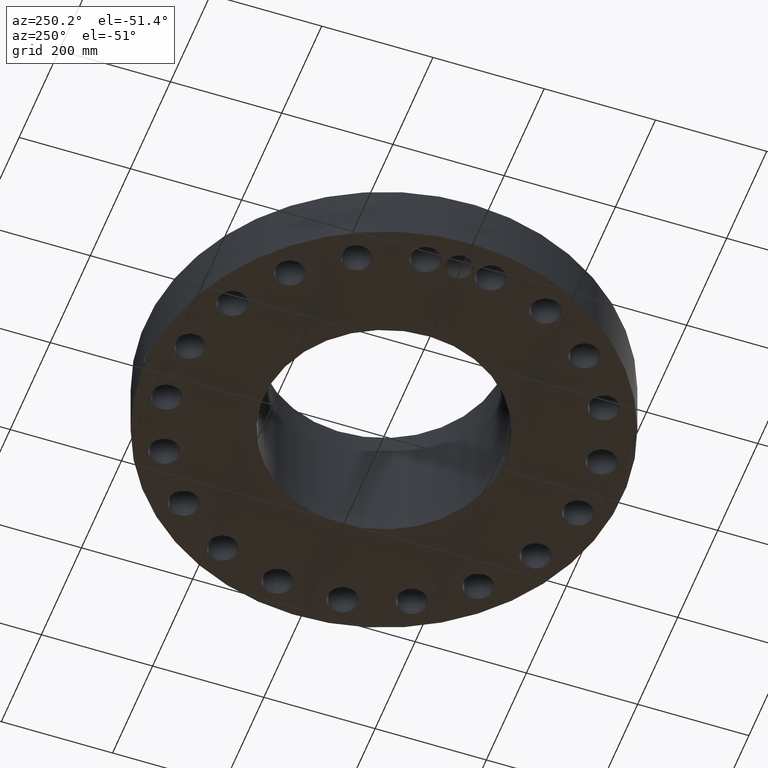
[diagram: clean part render]
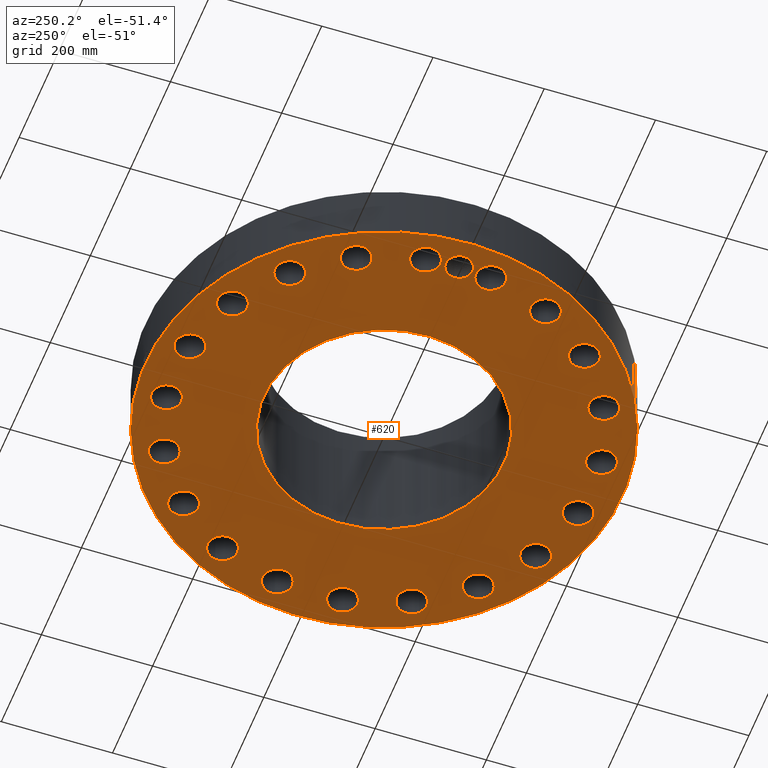
[diagram: same view with one face highlighted and labeled with its STEP entity id]
A machine part, auxiliary view. The second image highlights one B-rep face of the part: STEP entity #620.
In plain terms, the highlighted planar face has unit normal (0, 0, -1).
Its self-contained STEP definition (entity closure, byte-faithful):
#42=AXIS2_PLACEMENT_3D('Circle Axis2P3D',#40,#41,$) ;
#165=AXIS2_PLACEMENT_3D('Plane Axis2P3D',#162,#163,#164) ;
#169=AXIS2_PLACEMENT_3D('Circle Axis2P3D',#167,#168,$) ;
#178=AXIS2_PLACEMENT_3D('Circle Axis2P3D',#176,#177,$) ;
#187=AXIS2_PLACEMENT_3D('Circle Axis2P3D',#185,#186,$) ;
#244=AXIS2_PLACEMENT_3D('Circle Axis2P3D',#242,#243,$) ;
#253=AXIS2_PLACEMENT_3D('Circle Axis2P3D',#251,#252,$) ;
#262=AXIS2_PLACEMENT_3D('Circle Axis2P3D',#260,#261,$) ;
#271=AXIS2_PLACEMENT_3D('Circle Axis2P3D',#269,#270,$) ;
#280=AXIS2_PLACEMENT_3D('Circle Axis2P3D',#278,#279,$) ;
#289=AXIS2_PLACEMENT_3D('Circle Axis2P3D',#287,#288,$) ;
#298=AXIS2_PLACEMENT_3D('Circle Axis2P3D',#296,#297,$) ;
#307=AXIS2_PLACEMENT_3D('Circle Axis2P3D',#305,#306,$) ;
#316=AXIS2_PLACEMENT_3D('Circle Axis2P3D',#314,#315,$) ;
#325=AXIS2_PLACEMENT_3D('Circle Axis2P3D',#323,#324,$) ;
#334=AXIS2_PLACEMENT_3D('Circle Axis2P3D',#332,#333,$) ;
#343=AXIS2_PLACEMENT_3D('Circle Axis2P3D',#341,#342,$) ;
#352=AXIS2_PLACEMENT_3D('Circle Axis2P3D',#350,#351,$) ;
#361=AXIS2_PLACEMENT_3D('Circle Axis2P3D',#359,#360,$) ;
#370=AXIS2_PLACEMENT_3D('Circle Axis2P3D',#368,#369,$) ;
#379=AXIS2_PLACEMENT_3D('Circle Axis2P3D',#377,#378,$) ;
#388=AXIS2_PLACEMENT_3D('Circle Axis2P3D',#386,#387,$) ;
#397=AXIS2_PLACEMENT_3D('Circle Axis2P3D',#395,#396,$) ;
#406=AXIS2_PLACEMENT_3D('Circle Axis2P3D',#404,#405,$) ;
#415=AXIS2_PLACEMENT_3D('Circle Axis2P3D',#413,#414,$) ;
#424=AXIS2_PLACEMENT_3D('Circle Axis2P3D',#422,#423,$) ;
#433=AXIS2_PLACEMENT_3D('Circle Axis2P3D',#431,#432,$) ;
#442=AXIS2_PLACEMENT_3D('Circle Axis2P3D',#440,#441,$) ;
#451=AXIS2_PLACEMENT_3D('Circle Axis2P3D',#449,#450,$) ;
#460=AXIS2_PLACEMENT_3D('Circle Axis2P3D',#458,#459,$) ;
#469=AXIS2_PLACEMENT_3D('Circle Axis2P3D',#467,#468,$) ;
#478=AXIS2_PLACEMENT_3D('Circle Axis2P3D',#476,#477,$) ;
#487=AXIS2_PLACEMENT_3D('Circle Axis2P3D',#485,#486,$) ;
#496=AXIS2_PLACEMENT_3D('Circle Axis2P3D',#494,#495,$) ;
#505=AXIS2_PLACEMENT_3D('Circle Axis2P3D',#503,#504,$) ;
#514=AXIS2_PLACEMENT_3D('Circle Axis2P3D',#512,#513,$) ;
#523=AXIS2_PLACEMENT_3D('Circle Axis2P3D',#521,#522,$) ;
#532=AXIS2_PLACEMENT_3D('Circle Axis2P3D',#530,#531,$) ;
#541=AXIS2_PLACEMENT_3D('Circle Axis2P3D',#539,#540,$) ;
#550=AXIS2_PLACEMENT_3D('Circle Axis2P3D',#548,#549,$) ;
#559=AXIS2_PLACEMENT_3D('Circle Axis2P3D',#557,#558,$) ;
#568=AXIS2_PLACEMENT_3D('Circle Axis2P3D',#566,#567,$) ;
#577=AXIS2_PLACEMENT_3D('Circle Axis2P3D',#575,#576,$) ;
#586=AXIS2_PLACEMENT_3D('Circle Axis2P3D',#584,#585,$) ;
#595=AXIS2_PLACEMENT_3D('Circle Axis2P3D',#593,#594,$) ;
#604=AXIS2_PLACEMENT_3D('Circle Axis2P3D',#602,#603,$) ;
#613=AXIS2_PLACEMENT_3D('Circle Axis2P3D',#611,#612,$) ;
#40=CARTESIAN_POINT('Axis2P3D Location',(0.,0.,0.250000000001)) ;
#44=CARTESIAN_POINT('Vertex',(-8.09030596398,-14.809205732,0.250000000001)) ;
#46=CARTESIAN_POINT('Vertex',(8.09030596398,14.809205732,0.250000000001)) ;
#162=CARTESIAN_POINT('Axis2P3D Location',(0.,8.50000000003,0.250000000001)) ;
#167=CARTESIAN_POINT('Axis2P3D Location',(0.,0.,0.250000000001)) ;
#176=CARTESIAN_POINT('Axis2P3D Location',(-14.7500000001,-1.1189649382E-015,0.250000000001)) ;
#180=CARTESIAN_POINT('Vertex',(-15.5842738625,0.455765888276,0.250000000001)) ;
#182=CARTESIAN_POINT('Vertex',(-13.9693356339,0.542492921604,0.250000000001)) ;
#185=CARTESIAN_POINT('Axis2P3D Location',(-14.7500000001,-1.1189649382E-015,0.250000000001)) ;
#189=CARTESIAN_POINT('Vertex',(-15.3111127477,-0.767390322455,0.250000000001)) ;
#193=CARTESIAN_POINT('Control Point',(-14.0514188244,-0.715533879302,0.250000000001)) ;
#194=CARTESIAN_POINT('Control Point',(-14.118556164,-0.776622849857,0.250000000001)) ;
#195=CARTESIAN_POINT('Control Point',(-14.1924941387,-0.829970288566,0.250000000001)) ;
#196=CARTESIAN_POINT('Control Point',(-14.2720742187,-0.874557995032,0.250000000001)) ;
#197=CARTESIAN_POINT('Control Point',(-14.4276412036,-0.939620832783,0.250000000001)) ;
#198=CARTESIAN_POINT('Control Point',(-14.5926131451,-0.970379445515,0.250000000001)) ;
#199=CARTESIAN_POINT('Control Point',(-14.6697604831,-0.977000222488,0.250000000001)) ;
#200=CARTESIAN_POINT('Control Point',(-14.7983636801,-0.975285684745,0.250000000001)) ;
#201=CARTESIAN_POINT('Control Point',(-14.924315882,-0.952680483184,0.250000000001)) ;
#202=CARTESIAN_POINT('Control Point',(-14.9739500716,-0.940340956321,0.250000000001)) ;
#203=CARTESIAN_POINT('Control Point',(-15.0760871386,-0.907637720672,0.250000000001)) ;
#204=CARTESIAN_POINT('Control Point',(-15.1725070161,-0.861205760852,0.250000000001)) ;
#205=CARTESIAN_POINT('Control Point',(-15.2210955779,-0.833256870486,0.250000000001)) ;
#206=CARTESIAN_POINT('Control Point',(-15.2674000313,-0.801900452476,0.250000000001)) ;
#207=CARTESIAN_POINT('Control Point',(-15.3111127477,-0.767390322455,0.250000000001)) ;
#208=CARTESIAN_POINT('Vertex',(-14.0514188244,-0.715533879289,0.250000000001)) ;
#212=CARTESIAN_POINT('Control Point',(-14.0514188244,-0.715533879289,0.250000000001)) ;
#213=CARTESIAN_POINT('Control Point',(-13.988759441,-0.649911806447,0.250000000001)) ;
#214=CARTESIAN_POINT('Control Point',(-13.9336573939,-0.577297224844,0.250000000001)) ;
#215=CARTESIAN_POINT('Control Point',(-13.887167689,-0.498814867849,0.250000000001)) ;
#216=CARTESIAN_POINT('Control Point',(-13.8224416696,-0.353907081952,0.250000000001)) ;
#217=CARTESIAN_POINT('Control Point',(-13.7878918017,-0.199909548707,0.250000000001)) ;
#218=CARTESIAN_POINT('Control Point',(-13.7788308177,-0.133049610127,0.250000000001)) ;
#219=CARTESIAN_POINT('Control Point',(-13.7755624558,-0.0658253530476,0.250000000001)) ;
#220=CARTESIAN_POINT('Control Point',(-13.77805554,0.00108322515571,0.250000000001)) ;
#221=CARTESIAN_POINT('Vertex',(-13.77805554,0.00108322515571,0.250000000001)) ;
#225=CARTESIAN_POINT('Control Point',(-13.77805554,0.00108322515571,0.250000000001)) ;
#226=CARTESIAN_POINT('Control Point',(-13.780911831,0.0777394265752,0.250000000001)) ;
#227=CARTESIAN_POINT('Control Point',(-13.7913305514,0.153981240969,0.250000000001)) ;
#228=CARTESIAN_POINT('Control Point',(-13.8092574384,0.228801200281,0.250000000001)) ;
#229=CARTESIAN_POINT('Control Point',(-13.8477488535,0.339508725271,0.250000000001)) ;
#230=CARTESIAN_POINT('Control Point',(-13.9021555322,0.442476144287,0.250000000001)) ;
#231=CARTESIAN_POINT('Control Point',(-13.9228184454,0.477039834807,0.250000000001)) ;
#232=CARTESIAN_POINT('Control Point',(-13.9452423512,0.510417855202,0.250000000001)) ;
#233=CARTESIAN_POINT('Control Point',(-13.9693356339,0.542492921604,0.250000000001)) ;
#242=CARTESIAN_POINT('Axis2P3D Location',(14.5684030238,-2.30740835935,0.250000000001)) ;
#246=CARTESIAN_POINT('Vertex',(15.4986405394,-2.81559943028,0.250000000001)) ;
#248=CARTESIAN_POINT('Vertex',(13.6381655082,-1.79921728843,0.250000000001)) ;
#251=CARTESIAN_POINT('Axis2P3D Location',(14.5684030238,-2.30740835935,0.250000000001)) ;
#260=CARTESIAN_POINT('Axis2P3D Location',(0.,0.,0.250000000001)) ;
#264=CARTESIAN_POINT('Vertex',(4.07511707815,7.4594517761,0.250000000001)) ;
#266=CARTESIAN_POINT('Vertex',(-4.07511707815,-7.4594517761,0.250000000001)) ;
#269=CARTESIAN_POINT('Axis2P3D Location',(0.,0.,0.250000000001)) ;
#278=CARTESIAN_POINT('Axis2P3D Location',(13.1423462318,-6.69635987119,0.250000000001)) ;
#282=CARTESIAN_POINT('Vertex',(12.4146774582,-5.92558224053,0.250000000001)) ;
#284=CARTESIAN_POINT('Vertex',(13.8700150054,-7.46713750184,0.250000000001)) ;
#287=CARTESIAN_POINT('Axis2P3D Location',(13.1423462318,-6.69635987119,0.250000000001)) ;
#296=CARTESIAN_POINT('Axis2P3D Location',(10.4298250225,-10.4298250225,0.250000000001)) ;
#300=CARTESIAN_POINT('Vertex',(9.97595428045,-9.47190991697,0.250000000001)) ;
#302=CARTESIAN_POINT('Vertex',(10.8836957646,-11.3877401281,0.250000000001)) ;
#305=CARTESIAN_POINT('Axis2P3D Location',(10.4298250225,-10.4298250225,0.250000000001)) ;
#314=CARTESIAN_POINT('Axis2P3D Location',(6.69635987119,-13.1423462318,0.250000000001)) ;
#318=CARTESIAN_POINT('Vertex',(6.56071519115,-12.0910610561,0.250000000001)) ;
#320=CARTESIAN_POINT('Vertex',(6.83200455122,-14.1936314076,0.250000000001)) ;
#323=CARTESIAN_POINT('Axis2P3D Location',(6.69635987119,-13.1423462318,0.250000000001)) ;
#332=CARTESIAN_POINT('Axis2P3D Location',(2.30740835935,-14.5684030238,0.250000000001)) ;
#336=CARTESIAN_POINT('Vertex',(2.50326758775,-13.5266548956,0.250000000001)) ;
#338=CARTESIAN_POINT('Vertex',(2.11154913096,-15.6101511521,0.250000000001)) ;
#341=CARTESIAN_POINT('Axis2P3D Location',(2.30740835935,-14.5684030238,0.250000000001)) ;
#350=CARTESIAN_POINT('Axis2P3D Location',(-2.30740835935,-14.5684030238,0.250000000001)) ;
#354=CARTESIAN_POINT('Vertex',(-1.79921728843,-13.6381655082,0.250000000001)) ;
#356=CARTESIAN_POINT('Vertex',(-2.81559943028,-15.4986405394,0.250000000001)) ;
#359=CARTESIAN_POINT('Axis2P3D Location',(-2.30740835935,-14.5684030238,0.250000000001)) ;
#368=CARTESIAN_POINT('Axis2P3D Location',(-6.69635987119,-13.1423462318,0.250000000001)) ;
#372=CARTESIAN_POINT('Vertex',(-5.92558224053,-12.4146774582,0.250000000001)) ;
#374=CARTESIAN_POINT('Vertex',(-7.46713750184,-13.8700150054,0.250000000001)) ;
#377=CARTESIAN_POINT('Axis2P3D Location',(-6.69635987119,-13.1423462318,0.250000000001)) ;
#386=CARTESIAN_POINT('Axis2P3D Location',(-10.4298250225,-10.4298250225,0.250000000001)) ;
#390=CARTESIAN_POINT('Vertex',(-9.47190991697,-9.97595428045,0.250000000001)) ;
#392=CARTESIAN_POINT('Vertex',(-11.3877401281,-10.8836957646,0.250000000001)) ;
#395=CARTESIAN_POINT('Axis2P3D Location',(-10.4298250225,-10.4298250225,0.250000000001)) ;
#404=CARTESIAN_POINT('Axis2P3D Location',(-13.1423462318,-6.69635987119,0.250000000001)) ;
#408=CARTESIAN_POINT('Vertex',(-12.0910610561,-6.56071519115,0.250000000001)) ;
#410=CARTESIAN_POINT('Vertex',(-14.1936314076,-6.83200455122,0.250000000001)) ;
#413=CARTESIAN_POINT('Axis2P3D Location',(-13.1423462318,-6.69635987119,0.250000000001)) ;
#422=CARTESIAN_POINT('Axis2P3D Location',(-14.5684030238,-2.30740835935,0.250000000001)) ;
#426=CARTESIAN_POINT('Vertex',(-13.5266548956,-2.50326758775,0.250000000001)) ;
#428=CARTESIAN_POINT('Vertex',(-15.6101511521,-2.11154913096,0.250000000001)) ;
#431=CARTESIAN_POINT('Axis2P3D Location',(-14.5684030238,-2.30740835935,0.250000000001)) ;
#440=CARTESIAN_POINT('Axis2P3D Location',(-14.5684030238,2.30740835935,0.250000000001)) ;
#444=CARTESIAN_POINT('Vertex',(-13.6381655082,1.79921728843,0.250000000001)) ;
#446=CARTESIAN_POINT('Vertex',(-15.4986405394,2.81559943028,0.250000000001)) ;
#449=CARTESIAN_POINT('Axis2P3D Location',(-14.5684030238,2.30740835935,0.250000000001)) ;
#458=CARTESIAN_POINT('Axis2P3D Location',(-13.1423462318,6.69635987119,0.250000000001)) ;
#462=CARTESIAN_POINT('Vertex',(-12.4146774582,5.92558224053,0.250000000001)) ;
#464=CARTESIAN_POINT('Vertex',(-13.8700150054,7.46713750184,0.250000000001)) ;
#467=CARTESIAN_POINT('Axis2P3D Location',(-13.1423462318,6.69635987119,0.250000000001)) ;
#476=CARTESIAN_POINT('Axis2P3D Location',(-10.4298250225,10.4298250225,0.250000000001)) ;
#480=CARTESIAN_POINT('Vertex',(-9.97595428045,9.47190991697,0.250000000001)) ;
#482=CARTESIAN_POINT('Vertex',(-10.8836957646,11.3877401281,0.250000000001)) ;
#485=CARTESIAN_POINT('Axis2P3D Location',(-10.4298250225,10.4298250225,0.250000000001)) ;
#494=CARTESIAN_POINT('Axis2P3D Location',(-6.69635987119,13.1423462318,0.250000000001)) ;
#498=CARTESIAN_POINT('Vertex',(-6.56071519115,12.0910610561,0.250000000001)) ;
#500=CARTESIAN_POINT('Vertex',(-6.83200455122,14.1936314076,0.250000000001)) ;
#503=CARTESIAN_POINT('Axis2P3D Location',(-6.69635987119,13.1423462318,0.250000000001)) ;
#512=CARTESIAN_POINT('Axis2P3D Location',(-2.30740835935,14.5684030238,0.250000000001)) ;
#516=CARTESIAN_POINT('Vertex',(-2.50326758775,13.5266548956,0.250000000001)) ;
#518=CARTESIAN_POINT('Vertex',(-2.11154913096,15.6101511521,0.250000000001)) ;
#521=CARTESIAN_POINT('Axis2P3D Location',(-2.30740835935,14.5684030238,0.250000000001)) ;
#530=CARTESIAN_POINT('Axis2P3D Location',(2.30740835935,14.5684030238,0.250000000001)) ;
#534=CARTESIAN_POINT('Vertex',(1.79921728843,13.6381655082,0.250000000001)) ;
#536=CARTESIAN_POINT('Vertex',(2.81559943028,15.4986405394,0.250000000001)) ;
#539=CARTESIAN_POINT('Axis2P3D Location',(2.30740835935,14.5684030238,0.250000000001)) ;
#548=CARTESIAN_POINT('Axis2P3D Location',(6.69635987119,13.1423462318,0.250000000001)) ;
#552=CARTESIAN_POINT('Vertex',(5.92558224053,12.4146774582,0.250000000001)) ;
#554=CARTESIAN_POINT('Vertex',(7.46713750184,13.8700150054,0.250000000001)) ;
#557=CARTESIAN_POINT('Axis2P3D Location',(6.69635987119,13.1423462318,0.250000000001)) ;
#566=CARTESIAN_POINT('Axis2P3D Location',(10.4298250225,10.4298250225,0.250000000001)) ;
#570=CARTESIAN_POINT('Vertex',(9.47190991697,9.97595428045,0.250000000001)) ;
#572=CARTESIAN_POINT('Vertex',(11.3877401281,10.8836957646,0.250000000001)) ;
#575=CARTESIAN_POINT('Axis2P3D Location',(10.4298250225,10.4298250225,0.250000000001)) ;
#584=CARTESIAN_POINT('Axis2P3D Location',(13.1423462318,6.69635987119,0.250000000001)) ;
#588=CARTESIAN_POINT('Vertex',(12.0910610561,6.56071519115,0.250000000001)) ;
#590=CARTESIAN_POINT('Vertex',(14.1936314076,6.83200455122,0.250000000001)) ;
#593=CARTESIAN_POINT('Axis2P3D Location',(13.1423462318,6.69635987119,0.250000000001)) ;
#602=CARTESIAN_POINT('Axis2P3D Location',(14.5684030238,2.30740835935,0.250000000001)) ;
#606=CARTESIAN_POINT('Vertex',(13.5266548956,2.50326758775,0.250000000001)) ;
#608=CARTESIAN_POINT('Vertex',(15.6101511521,2.11154913096,0.250000000001)) ;
#611=CARTESIAN_POINT('Axis2P3D Location',(14.5684030238,2.30740835935,0.250000000001)) ;
#41=DIRECTION('Axis2P3D Direction',(0.,0.,-0.0393700787402)) ;
#163=DIRECTION('Axis2P3D Direction',(0.,0.,-0.0393700787402)) ;
#164=DIRECTION('Axis2P3D XDirection',(0.0393700787402,0.,0.)) ;
#168=DIRECTION('Axis2P3D Direction',(0.,0.,-0.0393700787402)) ;
#177=DIRECTION('Axis2P3D Direction',(0.,0.,-0.0393700787402)) ;
#186=DIRECTION('Axis2P3D Direction',(0.,0.,-0.0393700787402)) ;
#243=DIRECTION('Axis2P3D Direction',(0.,0.,-0.0393700787402)) ;
#252=DIRECTION('Axis2P3D Direction',(0.,0.,-0.0393700787402)) ;
#261=DIRECTION('Axis2P3D Direction',(0.,0.,-0.0393700787402)) ;
#270=DIRECTION('Axis2P3D Direction',(0.,0.,-0.0393700787402)) ;
#279=DIRECTION('Axis2P3D Direction',(0.,0.,-0.0393700787402)) ;
#288=DIRECTION('Axis2P3D Direction',(0.,0.,-0.0393700787402)) ;
#297=DIRECTION('Axis2P3D Direction',(0.,0.,-0.0393700787402)) ;
#306=DIRECTION('Axis2P3D Direction',(0.,0.,-0.0393700787402)) ;
#315=DIRECTION('Axis2P3D Direction',(0.,0.,-0.0393700787402)) ;
#324=DIRECTION('Axis2P3D Direction',(0.,0.,-0.0393700787402)) ;
#333=DIRECTION('Axis2P3D Direction',(0.,0.,-0.0393700787402)) ;
#342=DIRECTION('Axis2P3D Direction',(0.,0.,-0.0393700787402)) ;
#351=DIRECTION('Axis2P3D Direction',(0.,0.,-0.0393700787402)) ;
#360=DIRECTION('Axis2P3D Direction',(0.,0.,-0.0393700787402)) ;
#369=DIRECTION('Axis2P3D Direction',(0.,0.,-0.0393700787402)) ;
#378=DIRECTION('Axis2P3D Direction',(0.,0.,-0.0393700787402)) ;
#387=DIRECTION('Axis2P3D Direction',(0.,0.,-0.0393700787402)) ;
#396=DIRECTION('Axis2P3D Direction',(0.,0.,-0.0393700787402)) ;
#405=DIRECTION('Axis2P3D Direction',(0.,0.,-0.0393700787402)) ;
#414=DIRECTION('Axis2P3D Direction',(0.,0.,-0.0393700787402)) ;
#423=DIRECTION('Axis2P3D Direction',(0.,0.,-0.0393700787402)) ;
#432=DIRECTION('Axis2P3D Direction',(0.,0.,-0.0393700787402)) ;
#441=DIRECTION('Axis2P3D Direction',(0.,0.,-0.0393700787402)) ;
#450=DIRECTION('Axis2P3D Direction',(0.,0.,-0.0393700787402)) ;
#459=DIRECTION('Axis2P3D Direction',(0.,0.,-0.0393700787402)) ;
#468=DIRECTION('Axis2P3D Direction',(0.,0.,-0.0393700787402)) ;
#477=DIRECTION('Axis2P3D Direction',(0.,0.,-0.0393700787402)) ;
#486=DIRECTION('Axis2P3D Direction',(0.,0.,-0.0393700787402)) ;
#495=DIRECTION('Axis2P3D Direction',(0.,0.,-0.0393700787402)) ;
#504=DIRECTION('Axis2P3D Direction',(0.,0.,-0.0393700787402)) ;
#513=DIRECTION('Axis2P3D Direction',(0.,0.,-0.0393700787402)) ;
#522=DIRECTION('Axis2P3D Direction',(0.,0.,-0.0393700787402)) ;
#531=DIRECTION('Axis2P3D Direction',(0.,0.,-0.0393700787402)) ;
#540=DIRECTION('Axis2P3D Direction',(0.,0.,-0.0393700787402)) ;
#549=DIRECTION('Axis2P3D Direction',(0.,0.,-0.0393700787402)) ;
#558=DIRECTION('Axis2P3D Direction',(0.,0.,-0.0393700787402)) ;
#567=DIRECTION('Axis2P3D Direction',(0.,0.,-0.0393700787402)) ;
#576=DIRECTION('Axis2P3D Direction',(0.,0.,-0.0393700787402)) ;
#585=DIRECTION('Axis2P3D Direction',(0.,0.,-0.0393700787402)) ;
#594=DIRECTION('Axis2P3D Direction',(0.,0.,-0.0393700787402)) ;
#603=DIRECTION('Axis2P3D Direction',(0.,0.,-0.0393700787402)) ;
#612=DIRECTION('Axis2P3D Direction',(0.,0.,-0.0393700787402)) ;
#173=ORIENTED_EDGE('',*,*,#48,.T.) ;
#174=ORIENTED_EDGE('',*,*,#171,.T.) ;
#236=ORIENTED_EDGE('',*,*,#184,.F.) ;
#237=ORIENTED_EDGE('',*,*,#191,.F.) ;
#238=ORIENTED_EDGE('',*,*,#210,.F.) ;
#239=ORIENTED_EDGE('',*,*,#223,.T.) ;
#240=ORIENTED_EDGE('',*,*,#234,.T.) ;
#257=ORIENTED_EDGE('',*,*,#250,.F.) ;
#258=ORIENTED_EDGE('',*,*,#255,.F.) ;
#275=ORIENTED_EDGE('',*,*,#268,.F.) ;
#276=ORIENTED_EDGE('',*,*,#273,.F.) ;
#293=ORIENTED_EDGE('',*,*,#286,.F.) ;
#294=ORIENTED_EDGE('',*,*,#291,.F.) ;
#311=ORIENTED_EDGE('',*,*,#304,.F.) ;
#312=ORIENTED_EDGE('',*,*,#309,.F.) ;
#329=ORIENTED_EDGE('',*,*,#322,.F.) ;
#330=ORIENTED_EDGE('',*,*,#327,.F.) ;
#347=ORIENTED_EDGE('',*,*,#340,.F.) ;
#348=ORIENTED_EDGE('',*,*,#345,.F.) ;
#365=ORIENTED_EDGE('',*,*,#358,.F.) ;
#366=ORIENTED_EDGE('',*,*,#363,.F.) ;
#383=ORIENTED_EDGE('',*,*,#376,.F.) ;
#384=ORIENTED_EDGE('',*,*,#381,.F.) ;
#401=ORIENTED_EDGE('',*,*,#394,.F.) ;
#402=ORIENTED_EDGE('',*,*,#399,.F.) ;
#419=ORIENTED_EDGE('',*,*,#412,.F.) ;
#420=ORIENTED_EDGE('',*,*,#417,.F.) ;
#437=ORIENTED_EDGE('',*,*,#430,.F.) ;
#438=ORIENTED_EDGE('',*,*,#435,.F.) ;
#455=ORIENTED_EDGE('',*,*,#448,.F.) ;
#456=ORIENTED_EDGE('',*,*,#453,.F.) ;
#473=ORIENTED_EDGE('',*,*,#466,.F.) ;
#474=ORIENTED_EDGE('',*,*,#471,.F.) ;
#491=ORIENTED_EDGE('',*,*,#484,.F.) ;
#492=ORIENTED_EDGE('',*,*,#489,.F.) ;
#509=ORIENTED_EDGE('',*,*,#502,.F.) ;
#510=ORIENTED_EDGE('',*,*,#507,.F.) ;
#527=ORIENTED_EDGE('',*,*,#520,.F.) ;
#528=ORIENTED_EDGE('',*,*,#525,.F.) ;
#545=ORIENTED_EDGE('',*,*,#538,.F.) ;
#546=ORIENTED_EDGE('',*,*,#543,.F.) ;
#563=ORIENTED_EDGE('',*,*,#556,.F.) ;
#564=ORIENTED_EDGE('',*,*,#561,.F.) ;
#581=ORIENTED_EDGE('',*,*,#574,.F.) ;
#582=ORIENTED_EDGE('',*,*,#579,.F.) ;
#599=ORIENTED_EDGE('',*,*,#592,.F.) ;
#600=ORIENTED_EDGE('',*,*,#597,.F.) ;
#617=ORIENTED_EDGE('',*,*,#610,.F.) ;
#618=ORIENTED_EDGE('',*,*,#615,.F.) ;
#241=FACE_BOUND('',#235,.T.) ;
#259=FACE_BOUND('',#256,.T.) ;
#277=FACE_BOUND('',#274,.T.) ;
#295=FACE_BOUND('',#292,.T.) ;
#313=FACE_BOUND('',#310,.T.) ;
#331=FACE_BOUND('',#328,.T.) ;
#349=FACE_BOUND('',#346,.T.) ;
#367=FACE_BOUND('',#364,.T.) ;
#385=FACE_BOUND('',#382,.T.) ;
#403=FACE_BOUND('',#400,.T.) ;
#421=FACE_BOUND('',#418,.T.) ;
#439=FACE_BOUND('',#436,.T.) ;
#457=FACE_BOUND('',#454,.T.) ;
#475=FACE_BOUND('',#472,.T.) ;
#493=FACE_BOUND('',#490,.T.) ;
#511=FACE_BOUND('',#508,.T.) ;
#529=FACE_BOUND('',#526,.T.) ;
#547=FACE_BOUND('',#544,.T.) ;
#565=FACE_BOUND('',#562,.T.) ;
#583=FACE_BOUND('',#580,.T.) ;
#601=FACE_BOUND('',#598,.T.) ;
#619=FACE_BOUND('',#616,.T.) ;
#620=ADVANCED_FACE('PartBody',(#175,#241,#259,#277,#295,#313,#331,#349,#367,#385,#403,#421,#439,#457,#475,#493,#511,#529,#547,#565,#583,#601,#619),#166,.T.) ;
#192=B_SPLINE_CURVE_WITH_KNOTS('',5,(#193,#194,#195,#196,#197,#198,#199,#200,#201,#202,#203,#204,#205,#206,#207),.UNSPECIFIED.,.F.,.U.,(6,3,3,3,6),(0.,15.9040523235,29.5197572804,38.5879219436,48.5719191758),.UNSPECIFIED.) ;
#211=B_SPLINE_CURVE_WITH_KNOTS('',5,(#212,#213,#214,#215,#216,#217,#218,#219,#220),.UNSPECIFIED.,.F.,.U.,(6,3,6),(0.,15.8974775007,27.7661698082),.UNSPECIFIED.) ;
#224=B_SPLINE_CURVE_WITH_KNOTS('',5,(#225,#226,#227,#228,#229,#230,#231,#232,#233),.UNSPECIFIED.,.F.,.U.,(6,3,6),(0.,13.5977910837,20.790527697),.UNSPECIFIED.) ;
#43=CIRCLE('generated circle',#42,16.8750000001) ;
#170=CIRCLE('generated circle',#169,16.8750000001) ;
#179=CIRCLE('generated circle',#178,0.950650000004) ;
#188=CIRCLE('generated circle',#187,0.950650000004) ;
#245=CIRCLE('generated circle',#244,1.06) ;
#254=CIRCLE('generated circle',#253,1.06) ;
#263=CIRCLE('generated circle',#262,8.50000000003) ;
#272=CIRCLE('generated circle',#271,8.50000000003) ;
#281=CIRCLE('generated circle',#280,1.06) ;
#290=CIRCLE('generated circle',#289,1.06) ;
#299=CIRCLE('generated circle',#298,1.06) ;
#308=CIRCLE('generated circle',#307,1.06) ;
#317=CIRCLE('generated circle',#316,1.06) ;
#326=CIRCLE('generated circle',#325,1.06) ;
#335=CIRCLE('generated circle',#334,1.06) ;
#344=CIRCLE('generated circle',#343,1.06) ;
#353=CIRCLE('generated circle',#352,1.06) ;
#362=CIRCLE('generated circle',#361,1.06) ;
#371=CIRCLE('generated circle',#370,1.06) ;
#380=CIRCLE('generated circle',#379,1.06) ;
#389=CIRCLE('generated circle',#388,1.06) ;
#398=CIRCLE('generated circle',#397,1.06) ;
#407=CIRCLE('generated circle',#406,1.06) ;
#416=CIRCLE('generated circle',#415,1.06) ;
#425=CIRCLE('generated circle',#424,1.06) ;
#434=CIRCLE('generated circle',#433,1.06) ;
#443=CIRCLE('generated circle',#442,1.06) ;
#452=CIRCLE('generated circle',#451,1.06) ;
#461=CIRCLE('generated circle',#460,1.06) ;
#470=CIRCLE('generated circle',#469,1.06) ;
#479=CIRCLE('generated circle',#478,1.06) ;
#488=CIRCLE('generated circle',#487,1.06) ;
#497=CIRCLE('generated circle',#496,1.06) ;
#506=CIRCLE('generated circle',#505,1.06) ;
#515=CIRCLE('generated circle',#514,1.06) ;
#524=CIRCLE('generated circle',#523,1.06) ;
#533=CIRCLE('generated circle',#532,1.06) ;
#542=CIRCLE('generated circle',#541,1.06) ;
#551=CIRCLE('generated circle',#550,1.06) ;
#560=CIRCLE('generated circle',#559,1.06) ;
#569=CIRCLE('generated circle',#568,1.06) ;
#578=CIRCLE('generated circle',#577,1.06) ;
#587=CIRCLE('generated circle',#586,1.06) ;
#596=CIRCLE('generated circle',#595,1.06) ;
#605=CIRCLE('generated circle',#604,1.06) ;
#614=CIRCLE('generated circle',#613,1.06) ;
#48=EDGE_CURVE('',#45,#47,#43,.T.) ;
#171=EDGE_CURVE('',#47,#45,#170,.T.) ;
#184=EDGE_CURVE('',#181,#183,#179,.T.) ;
#191=EDGE_CURVE('',#190,#181,#188,.T.) ;
#210=EDGE_CURVE('',#209,#190,#192,.T.) ;
#223=EDGE_CURVE('',#209,#222,#211,.T.) ;
#234=EDGE_CURVE('',#222,#183,#224,.T.) ;
#250=EDGE_CURVE('',#247,#249,#245,.T.) ;
#255=EDGE_CURVE('',#249,#247,#254,.T.) ;
#268=EDGE_CURVE('',#265,#267,#263,.T.) ;
#273=EDGE_CURVE('',#267,#265,#272,.T.) ;
#286=EDGE_CURVE('',#283,#285,#281,.T.) ;
#291=EDGE_CURVE('',#285,#283,#290,.T.) ;
#304=EDGE_CURVE('',#301,#303,#299,.T.) ;
#309=EDGE_CURVE('',#303,#301,#308,.T.) ;
#322=EDGE_CURVE('',#319,#321,#317,.T.) ;
#327=EDGE_CURVE('',#321,#319,#326,.T.) ;
#340=EDGE_CURVE('',#337,#339,#335,.T.) ;
#345=EDGE_CURVE('',#339,#337,#344,.T.) ;
#358=EDGE_CURVE('',#355,#357,#353,.T.) ;
#363=EDGE_CURVE('',#357,#355,#362,.T.) ;
#376=EDGE_CURVE('',#373,#375,#371,.T.) ;
#381=EDGE_CURVE('',#375,#373,#380,.T.) ;
#394=EDGE_CURVE('',#391,#393,#389,.T.) ;
#399=EDGE_CURVE('',#393,#391,#398,.T.) ;
#412=EDGE_CURVE('',#409,#411,#407,.T.) ;
#417=EDGE_CURVE('',#411,#409,#416,.T.) ;
#430=EDGE_CURVE('',#427,#429,#425,.T.) ;
#435=EDGE_CURVE('',#429,#427,#434,.T.) ;
#448=EDGE_CURVE('',#445,#447,#443,.T.) ;
#453=EDGE_CURVE('',#447,#445,#452,.T.) ;
#466=EDGE_CURVE('',#463,#465,#461,.T.) ;
#471=EDGE_CURVE('',#465,#463,#470,.T.) ;
#484=EDGE_CURVE('',#481,#483,#479,.T.) ;
#489=EDGE_CURVE('',#483,#481,#488,.T.) ;
#502=EDGE_CURVE('',#499,#501,#497,.T.) ;
#507=EDGE_CURVE('',#501,#499,#506,.T.) ;
#520=EDGE_CURVE('',#517,#519,#515,.T.) ;
#525=EDGE_CURVE('',#519,#517,#524,.T.) ;
#538=EDGE_CURVE('',#535,#537,#533,.T.) ;
#543=EDGE_CURVE('',#537,#535,#542,.T.) ;
#556=EDGE_CURVE('',#553,#555,#551,.T.) ;
#561=EDGE_CURVE('',#555,#553,#560,.T.) ;
#574=EDGE_CURVE('',#571,#573,#569,.T.) ;
#579=EDGE_CURVE('',#573,#571,#578,.T.) ;
#592=EDGE_CURVE('',#589,#591,#587,.T.) ;
#597=EDGE_CURVE('',#591,#589,#596,.T.) ;
#610=EDGE_CURVE('',#607,#609,#605,.T.) ;
#615=EDGE_CURVE('',#609,#607,#614,.T.) ;
#172=EDGE_LOOP('',(#173,#174)) ;
#235=EDGE_LOOP('',(#236,#237,#238,#239,#240)) ;
#256=EDGE_LOOP('',(#257,#258)) ;
#274=EDGE_LOOP('',(#275,#276)) ;
#292=EDGE_LOOP('',(#293,#294)) ;
#310=EDGE_LOOP('',(#311,#312)) ;
#328=EDGE_LOOP('',(#329,#330)) ;
#346=EDGE_LOOP('',(#347,#348)) ;
#364=EDGE_LOOP('',(#365,#366)) ;
#382=EDGE_LOOP('',(#383,#384)) ;
#400=EDGE_LOOP('',(#401,#402)) ;
#418=EDGE_LOOP('',(#419,#420)) ;
#436=EDGE_LOOP('',(#437,#438)) ;
#454=EDGE_LOOP('',(#455,#456)) ;
#472=EDGE_LOOP('',(#473,#474)) ;
#490=EDGE_LOOP('',(#491,#492)) ;
#508=EDGE_LOOP('',(#509,#510)) ;
#526=EDGE_LOOP('',(#527,#528)) ;
#544=EDGE_LOOP('',(#545,#546)) ;
#562=EDGE_LOOP('',(#563,#564)) ;
#580=EDGE_LOOP('',(#581,#582)) ;
#598=EDGE_LOOP('',(#599,#600)) ;
#616=EDGE_LOOP('',(#617,#618)) ;
#175=FACE_OUTER_BOUND('',#172,.T.) ;
#166=PLANE('',#165) ;
#45=VERTEX_POINT('',#44) ;
#47=VERTEX_POINT('',#46) ;
#181=VERTEX_POINT('',#180) ;
#183=VERTEX_POINT('',#182) ;
#190=VERTEX_POINT('',#189) ;
#209=VERTEX_POINT('',#208) ;
#222=VERTEX_POINT('',#221) ;
#247=VERTEX_POINT('',#246) ;
#249=VERTEX_POINT('',#248) ;
#265=VERTEX_POINT('',#264) ;
#267=VERTEX_POINT('',#266) ;
#283=VERTEX_POINT('',#282) ;
#285=VERTEX_POINT('',#284) ;
#301=VERTEX_POINT('',#300) ;
#303=VERTEX_POINT('',#302) ;
#319=VERTEX_POINT('',#318) ;
#321=VERTEX_POINT('',#320) ;
#337=VERTEX_POINT('',#336) ;
#339=VERTEX_POINT('',#338) ;
#355=VERTEX_POINT('',#354) ;
#357=VERTEX_POINT('',#356) ;
#373=VERTEX_POINT('',#372) ;
#375=VERTEX_POINT('',#374) ;
#391=VERTEX_POINT('',#390) ;
#393=VERTEX_POINT('',#392) ;
#409=VERTEX_POINT('',#408) ;
#411=VERTEX_POINT('',#410) ;
#427=VERTEX_POINT('',#426) ;
#429=VERTEX_POINT('',#428) ;
#445=VERTEX_POINT('',#444) ;
#447=VERTEX_POINT('',#446) ;
#463=VERTEX_POINT('',#462) ;
#465=VERTEX_POINT('',#464) ;
#481=VERTEX_POINT('',#480) ;
#483=VERTEX_POINT('',#482) ;
#499=VERTEX_POINT('',#498) ;
#501=VERTEX_POINT('',#500) ;
#517=VERTEX_POINT('',#516) ;
#519=VERTEX_POINT('',#518) ;
#535=VERTEX_POINT('',#534) ;
#537=VERTEX_POINT('',#536) ;
#553=VERTEX_POINT('',#552) ;
#555=VERTEX_POINT('',#554) ;
#571=VERTEX_POINT('',#570) ;
#573=VERTEX_POINT('',#572) ;
#589=VERTEX_POINT('',#588) ;
#591=VERTEX_POINT('',#590) ;
#607=VERTEX_POINT('',#606) ;
#609=VERTEX_POINT('',#608) ;